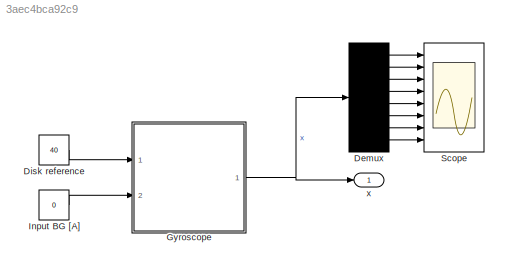
MODEL slx_3aec4bca92c9
KIND model
CONFIG AbsTol = auto
CONFIG EnableMultiTasking = off
CONFIG FixedStep = auto
CONFIG MaxStep = auto
CONFIG MinStep = auto
CONFIG RelTol = 1e-3
CONFIG SampleTimeConstraint = Unconstrained
CONFIG SolverName = ode45
CONFIG StartTime = 0.0
CONFIG StopTime = 10.0
BLOCK [Demux] Demux
  DisplayOption = none
  Outputs = 8
  Ports = [1, 8]
BLOCK [Constant] Disk reference
  Value = 40
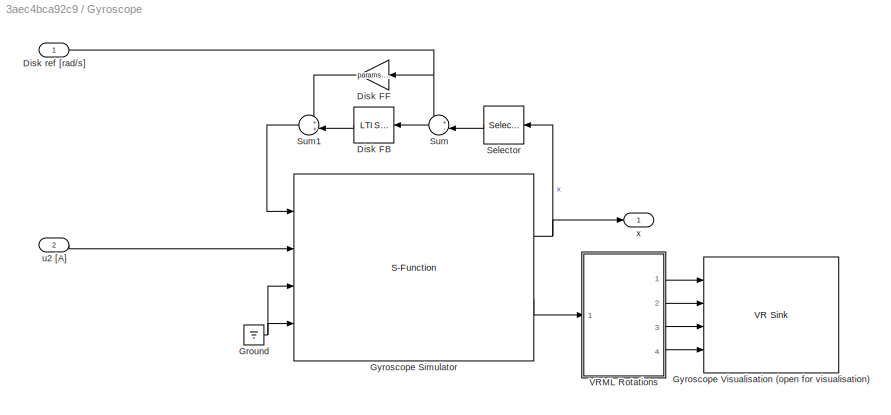
BLOCK [SubSystem] Gyroscope
  Ports = [2, 1]
  RequestExecContextInheritance = off
BLOCK [Reference] Gyroscope/Disk FB  REF=cstblocks/LTI System
  Ports = [1, 1]
  SourceBlock = cstblocks/LTI System
  SourceProductBaseCode = CT
  SourceType = LTI Block
BLOCK [Gain] Gyroscope/Disk FF
  Gain = params.fv1/params.Km1
BLOCK [Inport] Gyroscope/Disk ref [rad//s]
BLOCK [Ground] Gyroscope/Ground
BLOCK [S-Function] Gyroscope/Gyroscope Simulator
  EnableBusSupport = off
  FunctionName = gyro_simulation
  Parameters = x0,f,w1l,q2l,q3l,q4l,inertia,Km
  Ports = [4, 2]
  SFcnIsStateOwnerBlock = off
  SFunctionDeploymentMode = off
BLOCK [Reference] Gyroscope/Gyroscope Visualisation (open for visualisation)  REF=vrlib/VR Sink
  Commented = on
  InstantiateOnLoad = on
  Ports = [4]
  SourceBlock = vrlib/VR Sink
  SourceProductBaseCode = SL
  SourceType = Virtual Reality Sink
BLOCK [Selector] Gyroscope/Selector
  IndexOptions = Index vector (dialog)
  Indices = 5
  InputPortWidth = 8
  OutputSizes = 1
  Ports = [1, 1]
BLOCK [Sum] Gyroscope/Sum
  Inputs = +-|
  Ports = [2, 1]
BLOCK [Sum] Gyroscope/Sum1
  Inputs = ++|
  Ports = [2, 1]
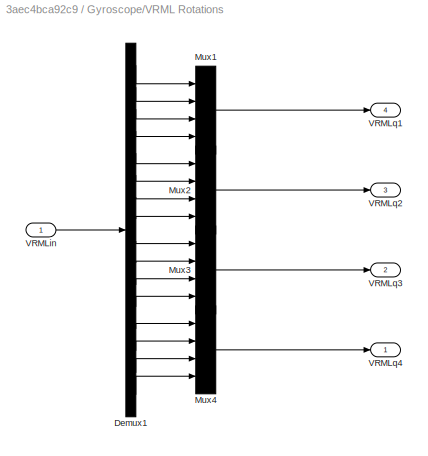
BLOCK [SubSystem] Gyroscope/VRML Rotations 
  Commented = on
  Ports = [1, 4]
  RequestExecContextInheritance = off
BLOCK [Demux] Gyroscope/VRML Rotations /Demux1
  Outputs = 16
  Ports = [1, 16]
BLOCK [Mux] Gyroscope/VRML Rotations /Mux1
  DisplayOption = bar
  Ports = [4, 1]
BLOCK [Mux] Gyroscope/VRML Rotations /Mux2
  DisplayOption = bar
  Ports = [4, 1]
BLOCK [Mux] Gyroscope/VRML Rotations /Mux3
  DisplayOption = bar
  Ports = [4, 1]
BLOCK [Mux] Gyroscope/VRML Rotations /Mux4
  DisplayOption = bar
  Ports = [4, 1]
BLOCK [Inport] Gyroscope/VRML Rotations /VRMLin
BLOCK [Outport] Gyroscope/VRML Rotations /VRMLq1
  Port = 4
BLOCK [Outport] Gyroscope/VRML Rotations /VRMLq2
  Port = 3
BLOCK [Outport] Gyroscope/VRML Rotations /VRMLq3
  Port = 2
BLOCK [Outport] Gyroscope/VRML Rotations /VRMLq4
BLOCK [Inport] Gyroscope/u2 [A]
  Port = 2
BLOCK [Outport] Gyroscope/x
BLOCK [Constant] Input BG [A]
  Value = 0
BLOCK [Scope] Scope
  Floating = off
  NumInputPorts = 8
  Ports = [8]
  ScopeSpecificationString = Simulink.scopes.TimeScopeBlockCfg('CurrentConfiguration', extmgr.ConfigurationSet(extmgr.Configuration('Core','General UI',true),extmgr.Configuration('Core','Source UI',true),extmgr.Configuration('Sources','WiredSimulink',true),extmgr.Configuration('Visuals','Time Domain',true,'SerializedDisplays',{struct('MinYLimReal','-49.37369','MaxYLimReal','444.36322','YLabelReal','','MinYLimMag','0.00000','M...<+6123ch>
BLOCK [Outport] x
LINE Demux:1 -> Scope:1
LINE Demux:2 -> Scope:2
LINE Demux:3 -> Scope:3
LINE Demux:4 -> Scope:4
LINE Demux:5 -> Scope:5
LINE Demux:6 -> Scope:6
LINE Demux:7 -> Scope:7
LINE Demux:8 -> Scope:8
LINE Disk reference:1 -> Gyroscope:1
LINE Gyroscope/Disk FB:1 -> Gyroscope/Sum1:2
LINE Gyroscope/Disk FF:1 -> Gyroscope/Sum1:1
NET Gyroscope/Disk ref [rad//s]:1 -> Gyroscope/Disk FF:1, Gyroscope/Sum:1
NET Gyroscope/Ground:1 -> Gyroscope/Gyroscope Simulator:3, Gyroscope/Gyroscope Simulator:4
NET Gyroscope/Gyroscope Simulator:1 -> Gyroscope/Selector:1, Gyroscope/x:1
LINE Gyroscope/Gyroscope Simulator:2 -> Gyroscope/VRML Rotations :1
LINE Gyroscope/Selector:1 -> Gyroscope/Sum:2
LINE Gyroscope/Sum1:1 -> Gyroscope/Gyroscope Simulator:1
LINE Gyroscope/Sum:1 -> Gyroscope/Disk FB:1
LINE Gyroscope/VRML Rotations /Demux1:1 -> Gyroscope/VRML Rotations /Mux1:1
LINE Gyroscope/VRML Rotations /Demux1:10 -> Gyroscope/VRML Rotations /Mux3:2
LINE Gyroscope/VRML Rotations /Demux1:11 -> Gyroscope/VRML Rotations /Mux3:3
LINE Gyroscope/VRML Rotations /Demux1:12 -> Gyroscope/VRML Rotations /Mux3:4
LINE Gyroscope/VRML Rotations /Demux1:13 -> Gyroscope/VRML Rotations /Mux4:1
LINE Gyroscope/VRML Rotations /Demux1:14 -> Gyroscope/VRML Rotations /Mux4:2
LINE Gyroscope/VRML Rotations /Demux1:15 -> Gyroscope/VRML Rotations /Mux4:3
LINE Gyroscope/VRML Rotations /Demux1:16 -> Gyroscope/VRML Rotations /Mux4:4
LINE Gyroscope/VRML Rotations /Demux1:2 -> Gyroscope/VRML Rotations /Mux1:2
LINE Gyroscope/VRML Rotations /Demux1:3 -> Gyroscope/VRML Rotations /Mux1:3
LINE Gyroscope/VRML Rotations /Demux1:4 -> Gyroscope/VRML Rotations /Mux1:4
LINE Gyroscope/VRML Rotations /Demux1:5 -> Gyroscope/VRML Rotations /Mux2:1
LINE Gyroscope/VRML Rotations /Demux1:6 -> Gyroscope/VRML Rotations /Mux2:2
LINE Gyroscope/VRML Rotations /Demux1:7 -> Gyroscope/VRML Rotations /Mux2:3
LINE Gyroscope/VRML Rotations /Demux1:8 -> Gyroscope/VRML Rotations /Mux2:4
LINE Gyroscope/VRML Rotations /Demux1:9 -> Gyroscope/VRML Rotations /Mux3:1
LINE Gyroscope/VRML Rotations /Mux1:1 -> Gyroscope/VRML Rotations /VRMLq1:1
LINE Gyroscope/VRML Rotations /Mux2:1 -> Gyroscope/VRML Rotations /VRMLq2:1
LINE Gyroscope/VRML Rotations /Mux3:1 -> Gyroscope/VRML Rotations /VRMLq3:1
LINE Gyroscope/VRML Rotations /Mux4:1 -> Gyroscope/VRML Rotations /VRMLq4:1
LINE Gyroscope/VRML Rotations /VRMLin:1 -> Gyroscope/VRML Rotations /Demux1:1
LINE Gyroscope/VRML Rotations :1 -> Gyroscope/Gyroscope Visualisation (open for visualisation):1
LINE Gyroscope/VRML Rotations :2 -> Gyroscope/Gyroscope Visualisation (open for visualisation):2
LINE Gyroscope/VRML Rotations :3 -> Gyroscope/Gyroscope Visualisation (open for visualisation):3
LINE Gyroscope/VRML Rotations :4 -> Gyroscope/Gyroscope Visualisation (open for visualisation):4
LINE Gyroscope/u2 [A]:1 -> Gyroscope/Gyroscope Simulator:2
NET Gyroscope:1 -> Demux:1, x:1
LINE Input BG [A]:1 -> Gyroscope:2
note: NET lines group one-source signal fan-out (src -> all destinations, sorted); 1:1 wires keep LINE
